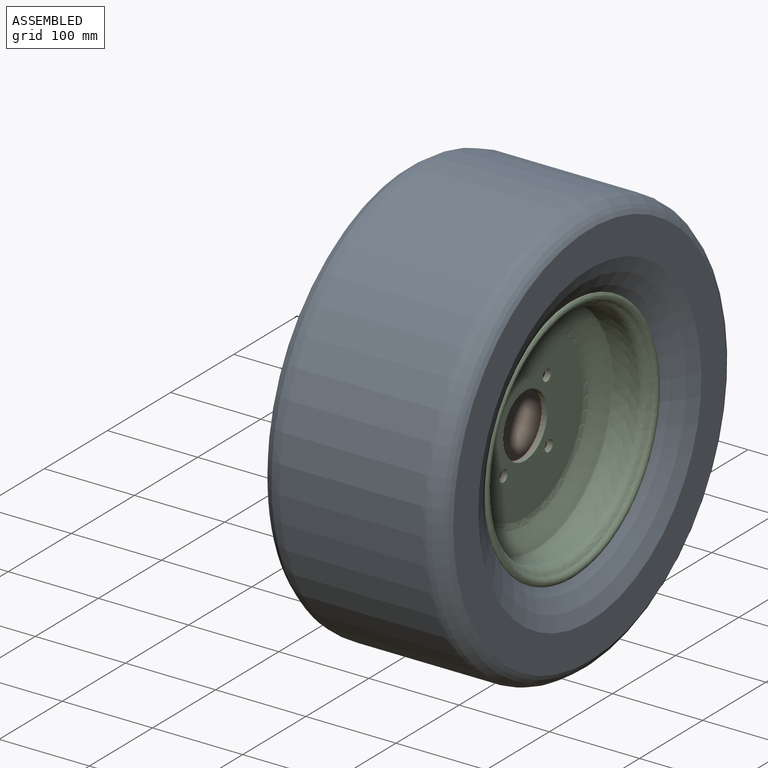
[diagram: assembled view]
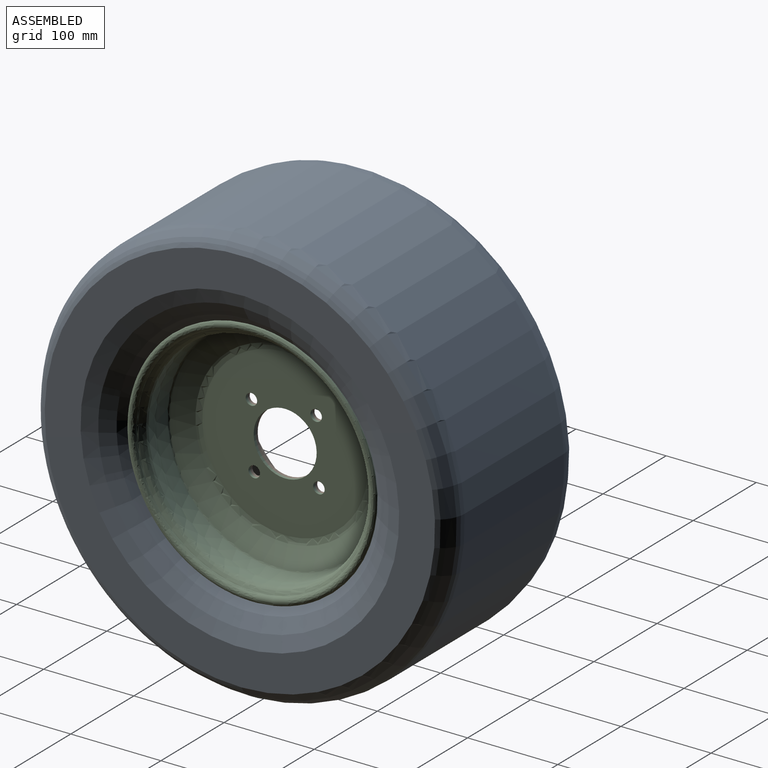
[diagram: assembled view, second angle]
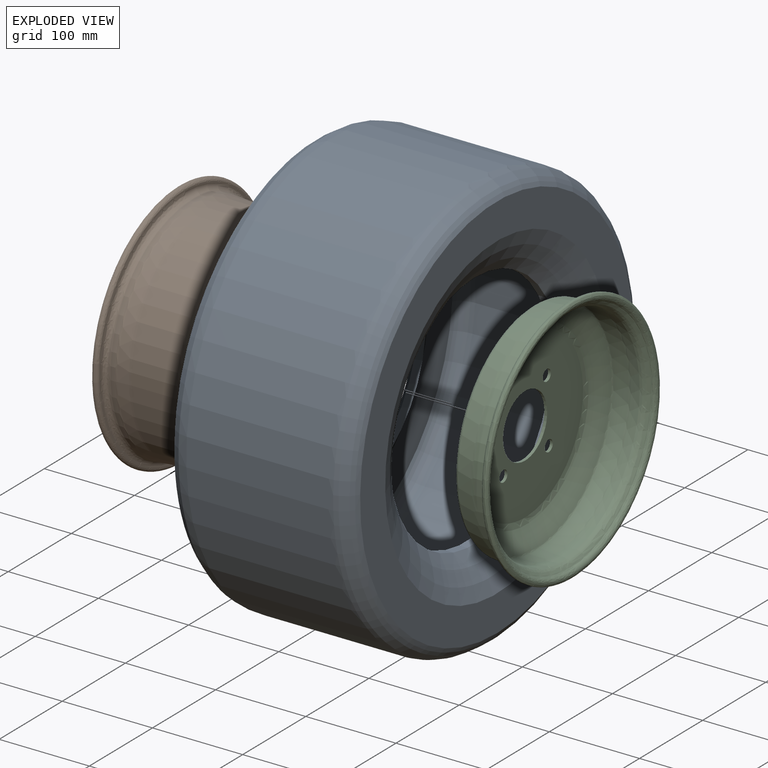
[diagram: exploded view]
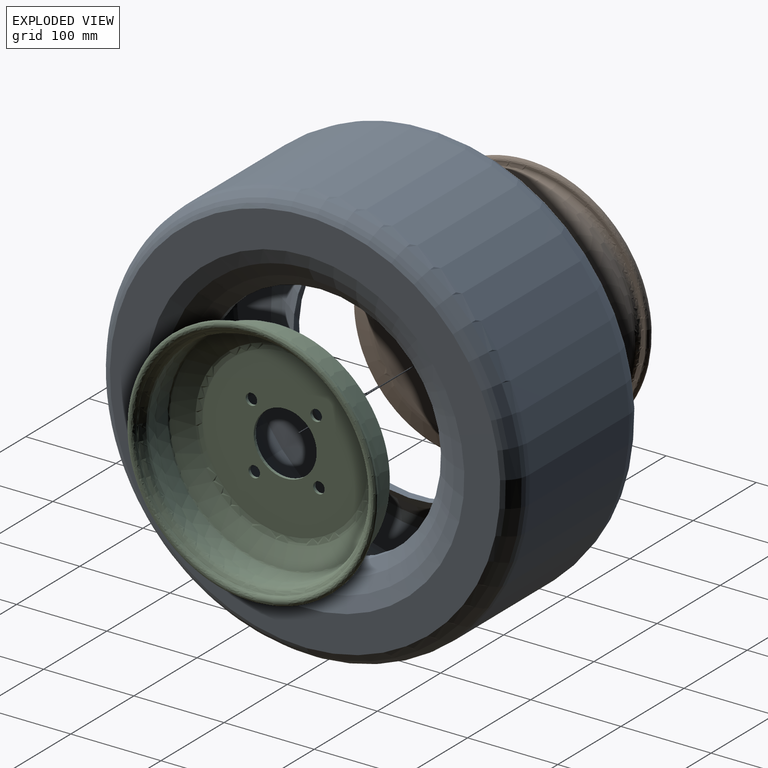
[diagram: exploded view, second angle]
ASSEMBLY  parts=3 mates=2
PART A: 16 faces, bbox 213.2x503.1x503.1 mm
  f0: cylinder r=133.53mm len=267.06mm, axis (-1,0,0), area 7632.7mm2, adj f1,f9
  f1: torus R=203.94mm, axis (-1,0,0), area 48637.9mm2, adj f0,f4
  f2: cylinder r=133.53mm len=267.06mm, axis (-1,0,0), area 7632.7mm2, adj f3,f10
  f3: torus R=203.94mm, axis (-1,0,0), area 48637.9mm2, adj f2,f6
  f4: plane 432.87x432.87mm, normal (-1,0,0), area 49059.7mm2, adj f1,f5
  f5: torus R=206.2mm, axis (-1,0,0), area 43690.1mm2, adj f4,f8
  f6: plane 432.87x432.87mm, normal (1,0,0), area 49059.7mm2, adj f3,f7
  f7: torus R=206.2mm, axis (-1,0,0), area 43690.1mm2, adj f6,f8
  f8: cylinder r=232.41mm len=464.82mm, axis (-1,0,0), area 229964.1mm2, adj f5,f7
  f9: torus R=203.94mm, axis (-1,0,0), area 50945.4mm2, adj f0,f11
  f10: torus R=203.94mm, axis (-1,0,0), area 50945.4mm2, adj f2,f13
  f11: plane 430.1x430.1mm, normal (1,0,0), area 46201.6mm2, adj f9,f12
  f12: torus R=206.2mm, axis (-1,0,0), area 30751.2mm2, adj f11,f15
  f13: plane 430.1x430.1mm, normal (-1,0,0), area 46201.6mm2, adj f10,f14
  f14: torus R=206.2mm, axis (-1,0,0), area 30751.2mm2, adj f13,f15
  f15: cylinder r=226.06mm len=452.12mm, axis (-1,0,0), area 223680.9mm2, adj f12,f14
PART B: 52 faces, bbox 276.9x276.9x113.2 mm
  f0: plane 183.6x183.6mm, normal (0,0,-1), area 22089.6mm2, adj f1,f2,f47,f48,f49,f50,f51
  f1: revolved ~199.65x99.83mm, area 2496.6mm2, adj f0,f2,f3
  f2: revolved ~199.65x99.83mm, area 2496.6mm2, adj f0,f1,f3
  f3: cone r=0mm half-angle=64.9deg, axis (0,0,1), area 16145.5mm2, adj f1,f2,f4,f5
  f4: revolved ~249.12x124.56mm, area 2657.5mm2, adj f3,f5,f6
  f5: revolved ~249.12x124.56mm, area 2657.5mm2, adj f3,f4,f6
  f6: cone r=0mm half-angle=3deg, axis (0,0,1), area 6613mm2, adj f4,f5,f7,f8
  f7: revolved ~250.07x125.04mm, area 522.4mm2, adj f6,f8,f9
  f8: revolved ~250.07x125.04mm, area 522.4mm2, adj f6,f7,f9
  f9: cylinder r=125.04mm len=250.07mm, axis (0,0,1), area 39988.6mm2, adj f7,f8,f10,f11
  f10: revolved ~250.27x125.13mm, area 870.9mm2, adj f9,f11,f12
  f11: revolved ~250.27x125.13mm, area 870.9mm2, adj f9,f10,f12
  f12: cone r=0mm half-angle=5deg, axis (0,0,1), area 9754.3mm2, adj f10,f11,f13,f14
  f13: revolved ~252.61x126.3mm, area 879.3mm2, adj f12,f14,f15
  f14: revolved ~252.61x126.3mm, area 879.3mm2, adj f12,f13,f15
  f15: cylinder r=126.3mm len=252.61mm, axis (0,0,1), area 4306.3mm2, adj f13,f14,f16,f17
  f16: revolved ~267.04x133.52mm, area 4395.6mm2, adj f15,f17,f18
  f17: revolved ~267.04x133.52mm, area 4395.6mm2, adj f15,f16,f19
  f18: revolved ~276.86x138.43mm, area 3166.2mm2, adj f16,f19,f20
  f19: revolved ~276.86x138.43mm, area 3166.2mm2, adj f17,f18,f21
  f20: revolved ~276.86x138.43mm, area 809.7mm2, adj f18,f21,f22
  f21: revolved ~276.86x138.43mm, area 809.7mm2, adj f19,f20,f23
  f22: revolved ~275.26x137.63mm, area 4081.1mm2, adj f20,f23,f24
  f23: revolved ~275.26x137.63mm, area 4081.1mm2, adj f21,f22,f25
  f24: revolved ~258.97x129.49mm, area 71.7mm2, adj f22,f25,f26
  f25: revolved ~258.97x129.49mm, area 71.7mm2, adj f23,f24,f27
  f26: revolved ~258.85x129.43mm, area 724.5mm2, adj f24,f27,f28
  f27: revolved ~258.85x129.43mm, area 724.5mm2, adj f25,f26,f29
  f28: revolved ~256.6x128.3mm, area 4095.9mm2, adj f26,f29,f30
  f29: revolved ~256.6x128.3mm, area 4095.9mm2, adj f27,f28,f30
  f30: cylinder r=123.14mm len=246.27mm, axis (0,0,1), area 4198.4mm2, adj f28,f29,f31,f32
  f31: revolved ~246.27x123.14mm, area 750.1mm2, adj f30,f32,f33
  f32: revolved ~246.27x123.14mm, area 750.1mm2, adj f30,f31,f33
  f33: cone r=0mm half-angle=5deg, axis (0,0,1), area 9509.5mm2, adj f31,f32,f34,f35
  f34: revolved ~243.96x121.98mm, area 955mm2, adj f33,f35,f36
  f35: revolved ~243.96x121.98mm, area 955mm2, adj f33,f34,f36
  f36: cylinder r=121.87mm len=243.74mm, axis (0,0,1), area 38976.2mm2, adj f34,f35,f37,f38
  f37: revolved ~243.74x121.87mm, area 445.5mm2, adj f36,f38,f40
  f38: revolved ~243.74x121.87mm, area 445.5mm2, adj f36,f37,f40
  f39: revolved ~242.8x121.4mm, area 1301.8mm2, adj f40,f41,f42
  f40: cone r=0mm half-angle=3deg, axis (0,0,1), area 6445.5mm2, adj f37,f38,f39,f42
  f41: cone r=0mm half-angle=64.9deg, axis (0,0,1), area 7974.9mm2, adj f39,f44,f45
  f42: revolved ~242.8x121.4mm, area 1301.8mm2, adj f39,f40,f45
  f43: plane 183.6x183.6mm, normal (0,0,1), area 22089.6mm2, adj f44,f46,f47,f48,f49,f50,f51
  f44: revolved ~196.98x98.49mm, area 2065.7mm2, adj f41,f43,f46
  f45: cone r=0mm half-angle=64.9deg, axis (0,0,1), area 7974.9mm2, adj f41,f42,f46
  f46: revolved ~196.98x98.49mm, area 2065.7mm2, adj f43,f44,f45
  f47: cylinder r=6.35mm len=12.7mm, axis (0,0,1), area 126.7mm2, adj f0,f43
  f48: cylinder r=6.35mm len=12.7mm, axis (0,0,1), area 126.7mm2, adj f0,f43
  f49: cylinder r=34.92mm len=69.85mm, axis (0,0,1), area 696.7mm2, adj f0,f43
  f50: cylinder r=6.35mm len=12.7mm, axis (0,0,1), area 126.7mm2, adj f0,f43
  f51: cylinder r=6.35mm len=12.7mm, axis (0,0,1), area 126.7mm2, adj f0,f43
PART C: 39 faces, bbox 276.9x276.9x57.3 mm
  f0: plane 183.6x183.6mm, normal (0,0,-1), area 22089.6mm2, adj f1,f2,f34,f35,f36,f37,f38
  f1: revolved ~199.65x99.83mm, area 2496.6mm2, adj f0,f2,f3
  f2: revolved ~199.65x99.83mm, area 2496.6mm2, adj f0,f1,f3
  f3: cone r=0mm half-angle=64.9deg, axis (0,0,1), area 16168.3mm2, adj f1,f2,f4,f5
  f4: revolved ~249.12x124.56mm, area 2523.4mm2, adj f3,f5,f6
  f5: revolved ~249.12x124.56mm, area 2523.4mm2, adj f3,f4,f6
  f6: cone r=0mm half-angle=6.1deg, axis (0,0,1), area 11861.4mm2, adj f4,f5,f7,f8
  f7: revolved ~252.61x126.3mm, area 1073.8mm2, adj f6,f8,f9
  f8: revolved ~252.61x126.3mm, area 1073.8mm2, adj f6,f7,f9
  f9: cylinder r=126.3mm len=252.61mm, axis (0,0,-1), area 7608.5mm2, adj f7,f8,f10,f11
  f10: revolved ~267.04x133.52mm, area 4395.6mm2, adj f9,f11,f12
  f11: revolved ~267.04x133.52mm, area 4395.6mm2, adj f9,f10,f13
  f12: revolved ~276.86x138.43mm, area 3166.2mm2, adj f10,f13,f14
  f13: revolved ~276.86x138.43mm, area 3166.2mm2, adj f11,f12,f15
  f14: revolved ~276.86x138.43mm, area 809.7mm2, adj f12,f15,f16
  f15: revolved ~276.86x138.43mm, area 809.7mm2, adj f13,f14,f17
  f16: revolved ~275.26x137.63mm, area 4081.1mm2, adj f14,f17,f18
  f17: revolved ~275.26x137.63mm, area 4081.1mm2, adj f15,f16,f19
  f18: revolved ~258.97x129.49mm, area 71.7mm2, adj f16,f19,f20
  f19: revolved ~258.97x129.49mm, area 71.7mm2, adj f17,f18,f21
  f20: revolved ~258.85x129.43mm, area 724.5mm2, adj f18,f21,f22
  f21: revolved ~258.85x129.43mm, area 724.5mm2, adj f19,f20,f23
  f22: revolved ~256.6x128.3mm, area 4095.9mm2, adj f20,f23,f24
  f23: revolved ~256.6x128.3mm, area 4095.9mm2, adj f21,f22,f24
  f24: cylinder r=123.14mm len=246.27mm, axis (0,0,-1), area 7417.8mm2, adj f22,f23,f25,f26
  f25: revolved ~246.27x123.14mm, area 916.1mm2, adj f24,f26,f27
  f26: revolved ~246.27x123.14mm, area 916.1mm2, adj f24,f25,f27
  f27: cone r=0mm half-angle=6.1deg, axis (0,0,1), area 11563.6mm2, adj f25,f26,f28,f29
  f28: revolved ~242.83x121.41mm, area 1236.4mm2, adj f27,f29,f30
  f29: revolved ~242.83x121.41mm, area 1236.4mm2, adj f27,f28,f30
  f30: cone r=0mm half-angle=64.9deg, axis (0,0,1), area 15972.4mm2, adj f28,f29,f31,f33
  f31: revolved ~196.98x98.49mm, area 2065.7mm2, adj f30,f32,f33
  f32: plane 183.6x183.6mm, normal (0,0,1), area 22089.6mm2, adj f31,f33,f34,f35,f36,f37,f38
  f33: revolved ~196.98x98.49mm, area 2065.7mm2, adj f30,f31,f32
  f34: cylinder r=6.35mm len=12.7mm, axis (0,0,1), area 126.7mm2, adj f0,f32
  f35: cylinder r=6.35mm len=12.7mm, axis (0,0,1), area 126.7mm2, adj f0,f32
  f36: cylinder r=6.35mm len=12.7mm, axis (0,0,1), area 126.7mm2, adj f0,f32
  f37: cylinder r=34.92mm len=69.85mm, axis (0,0,1), area 696.7mm2, adj f0,f32
  f38: cylinder r=6.35mm len=12.7mm, axis (0,0,1), area 126.7mm2, adj f0,f32
PLACE A rot(axis=(-1,0,0),87.5deg) t=(-27.94,0.01,0)mm
PLACE B rot(axis=(-0.57,-0.59,0.57),118.6deg) t=(0,0,0)mm
PLACE C rot(axis=(-0.57,0.59,-0.57),118.6deg) t=(0,0,0)mm
MATE fastened C.f3 <-> B.f3  axis (-1,0,0) through (0,0,0)mm
MATE fastened A.f0 <-> C.f3  axis (-1,0,0) through (50.29,0.01,0)mm
